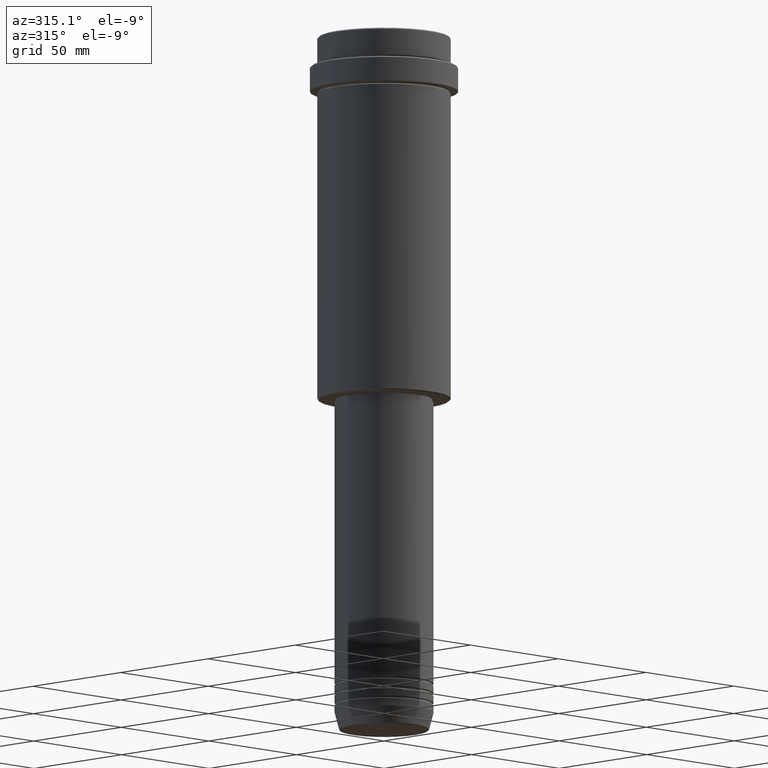
[diagram: clean part render]
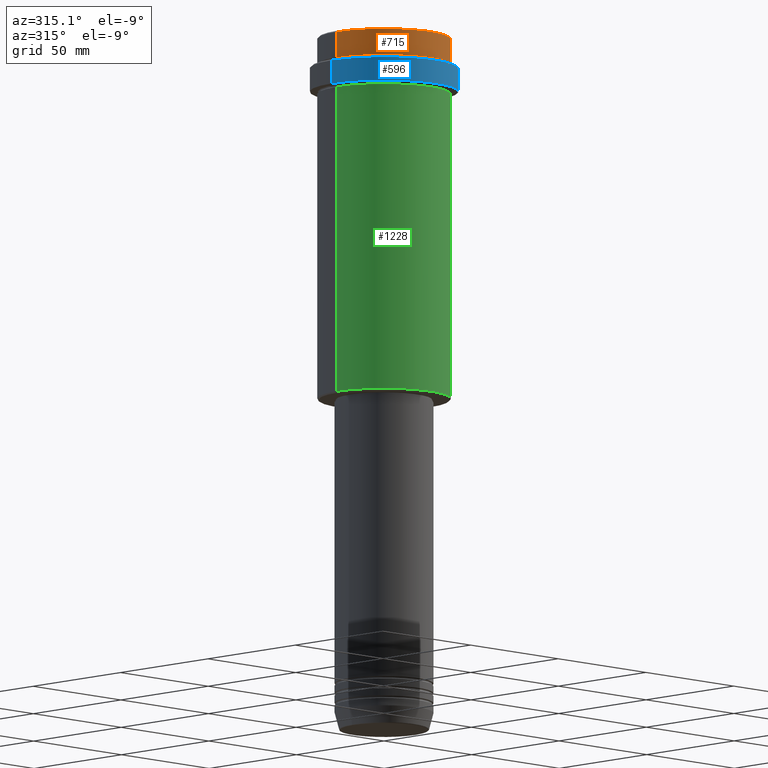
[diagram: same view with three faces highlighted in distinct colors, each labeled with its STEP entity id]
A machine part, auxiliary view with three faces highlighted in distinct colors.
Their STEP definitions:

[orange] entity #715 — the highlighted cylindrical surface (partial cylindrical patch) has radius 27 mm, axis along (-0, -0, 1).
#3 = VERTEX_POINT ( 'NONE', #695 ) ;
#41 = DIRECTION ( 'NONE',  ( 1.000000000000000000, 0.000000000000000000, 0.000000000000000000 ) ) ;
#123 = DIRECTION ( 'NONE',  ( -0.000000000000000000, -0.000000000000000000, 1.000000000000000000 ) ) ;
#239 = CYLINDRICAL_SURFACE ( 'NONE', #1039, 26.99999999999999645 ) ;
#246 = DIRECTION ( 'NONE',  ( -0.000000000000000000, -0.000000000000000000, 1.000000000000000000 ) ) ;
#262 = EDGE_LOOP ( 'NONE', ( #1175, #350, #971, #351 ) ) ;
#350 = ORIENTED_EDGE ( 'NONE', *, *, #969, .T. ) ;
#351 = ORIENTED_EDGE ( 'NONE', *, *, #576, .T. ) ;
#353 = DIRECTION ( 'NONE',  ( 1.000000000000000000, 0.000000000000000000, 0.000000000000000000 ) ) ;
#378 = VERTEX_POINT ( 'NONE', #1064 ) ;
#406 = AXIS2_PLACEMENT_3D ( 'NONE', #1188, #425, #1308 ) ;
#425 = DIRECTION ( 'NONE',  ( -0.000000000000000000, -0.000000000000000000, 1.000000000000000000 ) ) ;
#576 = EDGE_CURVE ( 'NONE', #648, #1015, #805, .T. ) ;
#637 = VECTOR ( 'NONE', #1158, 1000.000000000000000 ) ;
#648 = VERTEX_POINT ( 'NONE', #991 ) ;
#695 = CARTESIAN_POINT ( 'NONE',  ( 26.99999999999999645, 0.000000000000000000, -11.00000000000000178 ) ) ;
#697 = CARTESIAN_POINT ( 'NONE',  ( 26.99999999999999645, 0.000000000000000000, 0.000000000000000000 ) ) ;
#715 = ADVANCED_FACE ( 'NONE', ( #894 ), #239, .T. ) ;
#720 = EDGE_CURVE ( 'NONE', #378, #1015, #873, .T. ) ;
#805 = CIRCLE ( 'NONE', #1041, 26.99999999999999645 ) ;
#873 = LINE ( 'NONE', #887, #1222 ) ;
#887 = CARTESIAN_POINT ( 'NONE',  ( -26.99999999999999645, 3.306546357697853339E-15, 0.000000000000000000 ) ) ;
#894 = FACE_OUTER_BOUND ( 'NONE', #262, .T. ) ;
#901 = LINE ( 'NONE', #697, #637 ) ;
#969 = EDGE_CURVE ( 'NONE', #378, #3, #1026, .T. ) ;
#971 = ORIENTED_EDGE ( 'NONE', *, *, #1255, .T. ) ;
#991 = CARTESIAN_POINT ( 'NONE',  ( 26.99999999999999645, 0.000000000000000000, -0.5000000000000038858 ) ) ;
#1015 = VERTEX_POINT ( 'NONE', #1072 ) ;
#1020 = DIRECTION ( 'NONE',  ( 0.000000000000000000, 0.000000000000000000, -1.000000000000000000 ) ) ;
#1026 = CIRCLE ( 'NONE', #406, 26.99999999999999645 ) ;
#1039 = AXIS2_PLACEMENT_3D ( 'NONE', #1110, #123, #353 ) ;
#1041 = AXIS2_PLACEMENT_3D ( 'NONE', #1137, #1020, #41 ) ;
#1064 = CARTESIAN_POINT ( 'NONE',  ( -26.99999999999999645, 3.306546357697853339E-15, -11.00000000000000178 ) ) ;
#1072 = CARTESIAN_POINT ( 'NONE',  ( -26.99999999999999645, 3.306546357697853339E-15, -0.5000000000000038858 ) ) ;
#1110 = CARTESIAN_POINT ( 'NONE',  ( 0.000000000000000000, 0.000000000000000000, 0.000000000000000000 ) ) ;
#1137 = CARTESIAN_POINT ( 'NONE',  ( 0.000000000000000000, 0.000000000000000000, -0.5000000000000038858 ) ) ;
#1158 = DIRECTION ( 'NONE',  ( -0.000000000000000000, -0.000000000000000000, 1.000000000000000000 ) ) ;
#1175 = ORIENTED_EDGE ( 'NONE', *, *, #720, .F. ) ;
#1188 = CARTESIAN_POINT ( 'NONE',  ( 0.000000000000000000, 0.000000000000000000, -11.00000000000000178 ) ) ;
#1222 = VECTOR ( 'NONE', #246, 1000.000000000000000 ) ;
#1255 = EDGE_CURVE ( 'NONE', #3, #648, #901, .T. ) ;
#1308 = DIRECTION ( 'NONE',  ( 1.000000000000000000, 0.000000000000000000, 0.000000000000000000 ) ) ;

[blue] entity #596 — the highlighted cylindrical surface (partial cylindrical patch) has radius 30 mm, axis along (-0, -0, 1).
#9 = ORIENTED_EDGE ( 'NONE', *, *, #740, .F. ) ;
#14 = EDGE_LOOP ( 'NONE', ( #9, #1069, #1289, #746 ) ) ;
#59 = LINE ( 'NONE', #374, #1268 ) ;
#73 = CARTESIAN_POINT ( 'NONE',  ( -29.99999999999999645, 3.673940397442058389E-15, -22.00000000000000355 ) ) ;
#139 = DIRECTION ( 'NONE',  ( 1.000000000000000000, 0.000000000000000000, 0.000000000000000000 ) ) ;
#146 = CIRCLE ( 'NONE', #921, 30.00000000000000000 ) ;
#187 = VERTEX_POINT ( 'NONE', #73 ) ;
#229 = CARTESIAN_POINT ( 'NONE',  ( 0.000000000000000000, 0.000000000000000000, -12.49999999999998224 ) ) ;
#292 = VERTEX_POINT ( 'NONE', #1276 ) ;
#307 = DIRECTION ( 'NONE',  ( 1.000000000000000000, 0.000000000000000000, 0.000000000000000000 ) ) ;
#363 = EDGE_CURVE ( 'NONE', #187, #292, #946, .T. ) ;
#374 = CARTESIAN_POINT ( 'NONE',  ( -30.00000000000000000, 3.673940397442059178E-15, 0.000000000000000000 ) ) ;
#405 = EDGE_CURVE ( 'NONE', #1318, #504, #146, .T. ) ;
#446 = CARTESIAN_POINT ( 'NONE',  ( -30.00000000000000000, 3.673940397442059178E-15, -12.49999999999998224 ) ) ;
#491 = CARTESIAN_POINT ( 'NONE',  ( 30.00000000000000000, 0.000000000000000000, -12.49999999999998224 ) ) ;
#504 = VERTEX_POINT ( 'NONE', #446 ) ;
#545 = CYLINDRICAL_SURFACE ( 'NONE', #968, 30.00000000000000000 ) ;
#559 = DIRECTION ( 'NONE',  ( 0.000000000000000000, 0.000000000000000000, -1.000000000000000000 ) ) ;
#563 = DIRECTION ( 'NONE',  ( 1.000000000000000000, 0.000000000000000000, 0.000000000000000000 ) ) ;
#596 = ADVANCED_FACE ( 'NONE', ( #1349 ), #545, .T. ) ;
#638 = EDGE_CURVE ( 'NONE', #292, #1318, #774, .T. ) ;
#660 = CARTESIAN_POINT ( 'NONE',  ( 30.00000000000000000, 0.000000000000000000, 0.000000000000000000 ) ) ;
#740 = EDGE_CURVE ( 'NONE', #187, #504, #59, .T. ) ;
#746 = ORIENTED_EDGE ( 'NONE', *, *, #405, .T. ) ;
#774 = LINE ( 'NONE', #660, #1090 ) ;
#780 = DIRECTION ( 'NONE',  ( -0.000000000000000000, -0.000000000000000000, 1.000000000000000000 ) ) ;
#801 = DIRECTION ( 'NONE',  ( -0.000000000000000000, -0.000000000000000000, 1.000000000000000000 ) ) ;
#827 = AXIS2_PLACEMENT_3D ( 'NONE', #1292, #1285, #307 ) ;
#921 = AXIS2_PLACEMENT_3D ( 'NONE', #229, #559, #563 ) ;
#946 = CIRCLE ( 'NONE', #827, 29.99999999999999645 ) ;
#968 = AXIS2_PLACEMENT_3D ( 'NONE', #1103, #780, #139 ) ;
#1069 = ORIENTED_EDGE ( 'NONE', *, *, #363, .T. ) ;
#1090 = VECTOR ( 'NONE', #1209, 1000.000000000000000 ) ;
#1103 = CARTESIAN_POINT ( 'NONE',  ( 0.000000000000000000, 0.000000000000000000, 0.000000000000000000 ) ) ;
#1209 = DIRECTION ( 'NONE',  ( -0.000000000000000000, -0.000000000000000000, 1.000000000000000000 ) ) ;
#1268 = VECTOR ( 'NONE', #801, 1000.000000000000000 ) ;
#1276 = CARTESIAN_POINT ( 'NONE',  ( 29.99999999999999645, 0.000000000000000000, -22.00000000000000355 ) ) ;
#1285 = DIRECTION ( 'NONE',  ( -0.000000000000000000, -0.000000000000000000, 1.000000000000000000 ) ) ;
#1289 = ORIENTED_EDGE ( 'NONE', *, *, #638, .T. ) ;
#1292 = CARTESIAN_POINT ( 'NONE',  ( 0.000000000000000000, 0.000000000000000000, -22.00000000000000355 ) ) ;
#1318 = VERTEX_POINT ( 'NONE', #491 ) ;
#1349 = FACE_OUTER_BOUND ( 'NONE', #14, .T. ) ;

[green] entity #1228 — the highlighted cylindrical surface (partial cylindrical patch) has radius 27 mm, axis along (-0, -0, 1).
#13 = DIRECTION ( 'NONE',  ( -0.000000000000000000, -0.000000000000000000, 1.000000000000000000 ) ) ;
#117 = CYLINDRICAL_SURFACE ( 'NONE', #1027, 26.99999999999999645 ) ;
#131 = FACE_OUTER_BOUND ( 'NONE', #792, .T. ) ;
#162 = DIRECTION ( 'NONE',  ( -0.000000000000000000, -0.000000000000000000, 1.000000000000000000 ) ) ;
#177 = EDGE_CURVE ( 'NONE', #980, #423, #398, .T. ) ;
#270 = ORIENTED_EDGE ( 'NONE', *, *, #177, .T. ) ;
#291 = ORIENTED_EDGE ( 'NONE', *, *, #889, .F. ) ;
#299 = CARTESIAN_POINT ( 'NONE',  ( -26.99999999999999645, 3.306546357697853339E-15, -147.5000000000000853 ) ) ;
#304 = VERTEX_POINT ( 'NONE', #299 ) ;
#337 = CIRCLE ( 'NONE', #1204, 26.99999999999999645 ) ;
#344 = CARTESIAN_POINT ( 'NONE',  ( 0.000000000000000000, 0.000000000000000000, -147.5000000000000853 ) ) ;
#390 = CARTESIAN_POINT ( 'NONE',  ( 26.99999999999999645, 0.000000000000000000, -147.5000000000000853 ) ) ;
#398 = LINE ( 'NONE', #707, #1055 ) ;
#423 = VERTEX_POINT ( 'NONE', #784 ) ;
#464 = EDGE_CURVE ( 'NONE', #304, #980, #337, .T. ) ;
#658 = AXIS2_PLACEMENT_3D ( 'NONE', #1286, #728, #831 ) ;
#681 = CIRCLE ( 'NONE', #658, 26.99999999999999645 ) ;
#707 = CARTESIAN_POINT ( 'NONE',  ( 26.99999999999999645, 0.000000000000000000, 0.000000000000000000 ) ) ;
#728 = DIRECTION ( 'NONE',  ( -0.000000000000000000, -0.000000000000000000, 1.000000000000000000 ) ) ;
#775 = DIRECTION ( 'NONE',  ( 1.000000000000000000, 0.000000000000000000, 0.000000000000000000 ) ) ;
#784 = CARTESIAN_POINT ( 'NONE',  ( 26.99999999999999645, 0.000000000000000000, -23.00000000000000000 ) ) ;
#792 = EDGE_LOOP ( 'NONE', ( #1106, #1408, #270, #291 ) ) ;
#831 = DIRECTION ( 'NONE',  ( 1.000000000000000000, 0.000000000000000000, 0.000000000000000000 ) ) ;
#889 = EDGE_CURVE ( 'NONE', #1282, #423, #681, .T. ) ;
#898 = DIRECTION ( 'NONE',  ( -0.000000000000000000, -0.000000000000000000, 1.000000000000000000 ) ) ;
#980 = VERTEX_POINT ( 'NONE', #390 ) ;
#1008 = CARTESIAN_POINT ( 'NONE',  ( 0.000000000000000000, 0.000000000000000000, 0.000000000000000000 ) ) ;
#1027 = AXIS2_PLACEMENT_3D ( 'NONE', #1008, #13, #775 ) ;
#1055 = VECTOR ( 'NONE', #1155, 1000.000000000000000 ) ;
#1106 = ORIENTED_EDGE ( 'NONE', *, *, #1356, .F. ) ;
#1141 = CARTESIAN_POINT ( 'NONE',  ( -26.99999999999999645, 3.306546357697853339E-15, -23.00000000000000000 ) ) ;
#1152 = LINE ( 'NONE', #1354, #1371 ) ;
#1155 = DIRECTION ( 'NONE',  ( -0.000000000000000000, -0.000000000000000000, 1.000000000000000000 ) ) ;
#1204 = AXIS2_PLACEMENT_3D ( 'NONE', #344, #898, #1234 ) ;
#1228 = ADVANCED_FACE ( 'NONE', ( #131 ), #117, .T. ) ;
#1234 = DIRECTION ( 'NONE',  ( -1.000000000000000000, 0.000000000000000000, 0.000000000000000000 ) ) ;
#1282 = VERTEX_POINT ( 'NONE', #1141 ) ;
#1286 = CARTESIAN_POINT ( 'NONE',  ( 0.000000000000000000, 0.000000000000000000, -23.00000000000000000 ) ) ;
#1354 = CARTESIAN_POINT ( 'NONE',  ( -26.99999999999999645, 3.306546357697853339E-15, 0.000000000000000000 ) ) ;
#1356 = EDGE_CURVE ( 'NONE', #304, #1282, #1152, .T. ) ;
#1371 = VECTOR ( 'NONE', #162, 1000.000000000000000 ) ;
#1408 = ORIENTED_EDGE ( 'NONE', *, *, #464, .T. ) ;